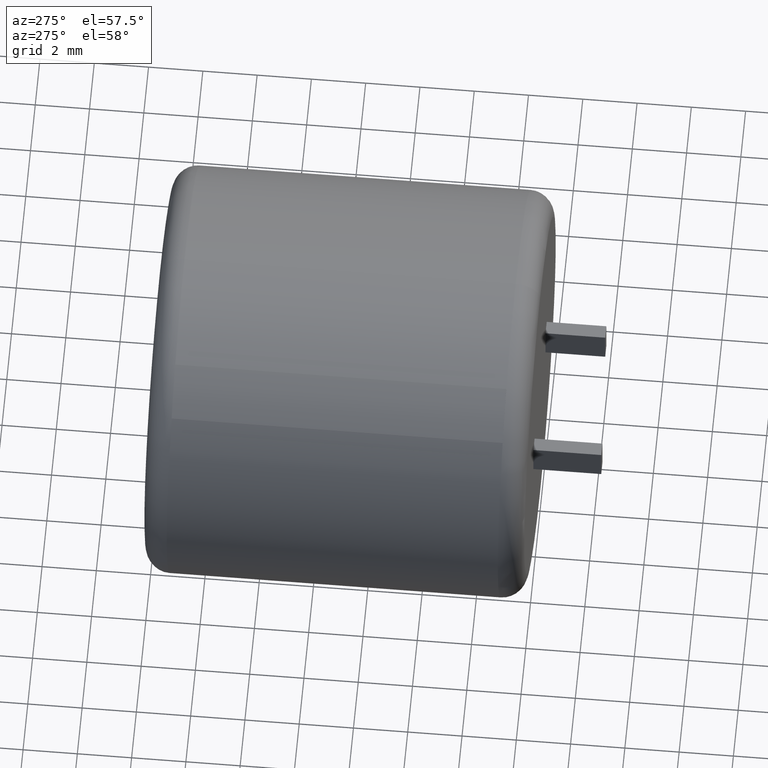
[diagram: clean part render]
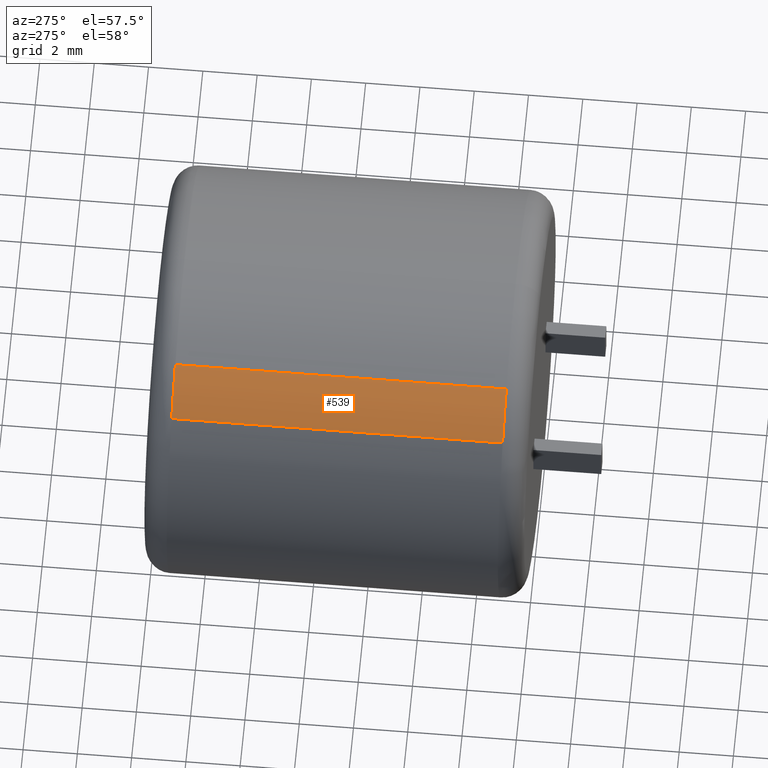
[diagram: same view with one face highlighted and labeled with its STEP entity id]
A machine part, auxiliary view. The second image highlights one B-rep face of the part: STEP entity #539.
In plain terms, the highlighted cylindrical surface (partial cylindrical patch) has radius 7.51 mm, axis along (-0, -1, -0).
Its self-contained STEP definition (entity closure, byte-faithful):
#139 = AXIS2_PLACEMENT_3D ( 'NONE', #2374, #1103, #1945 ) ;
#291 = ORIENTED_EDGE ( 'NONE', *, *, #458, .T. ) ;
#360 = CARTESIAN_POINT ( 'NONE',  ( -3.901451275081159400, 0.9029999999999992500, 6.417069264716376500 ) ) ;
#362 = CYLINDRICAL_SURFACE ( 'NONE', #2012, 7.509999999999998900 ) ;
#458 = EDGE_CURVE ( 'NONE', #1998, #1212, #1996, .T. ) ;
#500 = VERTEX_POINT ( 'NONE', #2443 ) ;
#521 = EDGE_CURVE ( 'NONE', #1212, #1721, #2361, .T. ) ;
#524 = DIRECTION ( 'NONE',  ( 0.0000000000000000000, 1.000000000000000000, 0.0000000000000000000 ) ) ;
#539 = ADVANCED_FACE ( 'NONE', ( #2568 ), #362, .T. ) ;
#541 = DIRECTION ( 'NONE',  ( -0.0000000000000000000, -1.000000000000000000, -0.0000000000000000000 ) ) ;
#682 = ORIENTED_EDGE ( 'NONE', *, *, #521, .T. ) ;
#735 = CARTESIAN_POINT ( 'NONE',  ( 0.0000000000000000000, 13.09700000000000100, 0.0000000000000000000 ) ) ;
#957 = CARTESIAN_POINT ( 'NONE',  ( -3.901451275081162100, 14.00000000000000000, 6.417069264716374700 ) ) ;
#1085 = CARTESIAN_POINT ( 'NONE',  ( 0.0000000000000000000, 14.00000000000000000, 0.0000000000000000000 ) ) ;
#1103 = DIRECTION ( 'NONE',  ( 0.0000000000000000000, 1.000000000000000000, 0.0000000000000000000 ) ) ;
#1109 = DIRECTION ( 'NONE',  ( -0.0000000000000000000, -1.000000000000000000, -0.0000000000000000000 ) ) ;
#1172 = EDGE_LOOP ( 'NONE', ( #1909, #1662, #291, #682 ) ) ;
#1201 = VECTOR ( 'NONE', #524, 1000.000000000000000 ) ;
#1212 = VERTEX_POINT ( 'NONE', #2171 ) ;
#1459 = EDGE_CURVE ( 'NONE', #1721, #500, #2254, .T. ) ;
#1545 = CARTESIAN_POINT ( 'NONE',  ( -5.454562447073166200, 13.09700000000000100, 5.162155413291929800 ) ) ;
#1662 = ORIENTED_EDGE ( 'NONE', *, *, #2603, .T. ) ;
#1696 = DIRECTION ( 'NONE',  ( -0.0000000000000000000, -1.000000000000000000, -0.0000000000000000000 ) ) ;
#1705 = VECTOR ( 'NONE', #1696, 1000.000000000000000 ) ;
#1721 = VERTEX_POINT ( 'NONE', #1545 ) ;
#1909 = ORIENTED_EDGE ( 'NONE', *, *, #1459, .T. ) ;
#1945 = DIRECTION ( 'NONE',  ( 4.440892098500626200E-015, 0.0000000000000000000, -1.000000000000000000 ) ) ;
#1996 = LINE ( 'NONE', #957, #1201 ) ;
#1998 = VERTEX_POINT ( 'NONE', #360 ) ;
#2012 = AXIS2_PLACEMENT_3D ( 'NONE', #1085, #1109, #2485 ) ;
#2047 = DIRECTION ( 'NONE',  ( 0.0000000000000000000, 0.0000000000000000000, -1.000000000000000000 ) ) ;
#2118 = AXIS2_PLACEMENT_3D ( 'NONE', #735, #541, #2047 ) ;
#2171 = CARTESIAN_POINT ( 'NONE',  ( -3.901451275081162100, 13.09700000000000100, 6.417069264716374700 ) ) ;
#2254 = LINE ( 'NONE', #2571, #1705 ) ;
#2361 = CIRCLE ( 'NONE', #2118, 7.509999999999998900 ) ;
#2374 = CARTESIAN_POINT ( 'NONE',  ( 0.0000000000000000000, 0.9029999999999992500, 0.0000000000000000000 ) ) ;
#2443 = CARTESIAN_POINT ( 'NONE',  ( -5.454562447073168800, 0.9029999999999992500, 5.162155413291927200 ) ) ;
#2485 = DIRECTION ( 'NONE',  ( 0.0000000000000000000, 0.0000000000000000000, -1.000000000000000000 ) ) ;
#2529 = CIRCLE ( 'NONE', #139, 7.509999999999998900 ) ;
#2568 = FACE_OUTER_BOUND ( 'NONE', #1172, .T. ) ;
#2571 = CARTESIAN_POINT ( 'NONE',  ( -5.454562447073166200, 14.00000000000000000, 5.162155413291929800 ) ) ;
#2603 = EDGE_CURVE ( 'NONE', #500, #1998, #2529, .T. ) ;